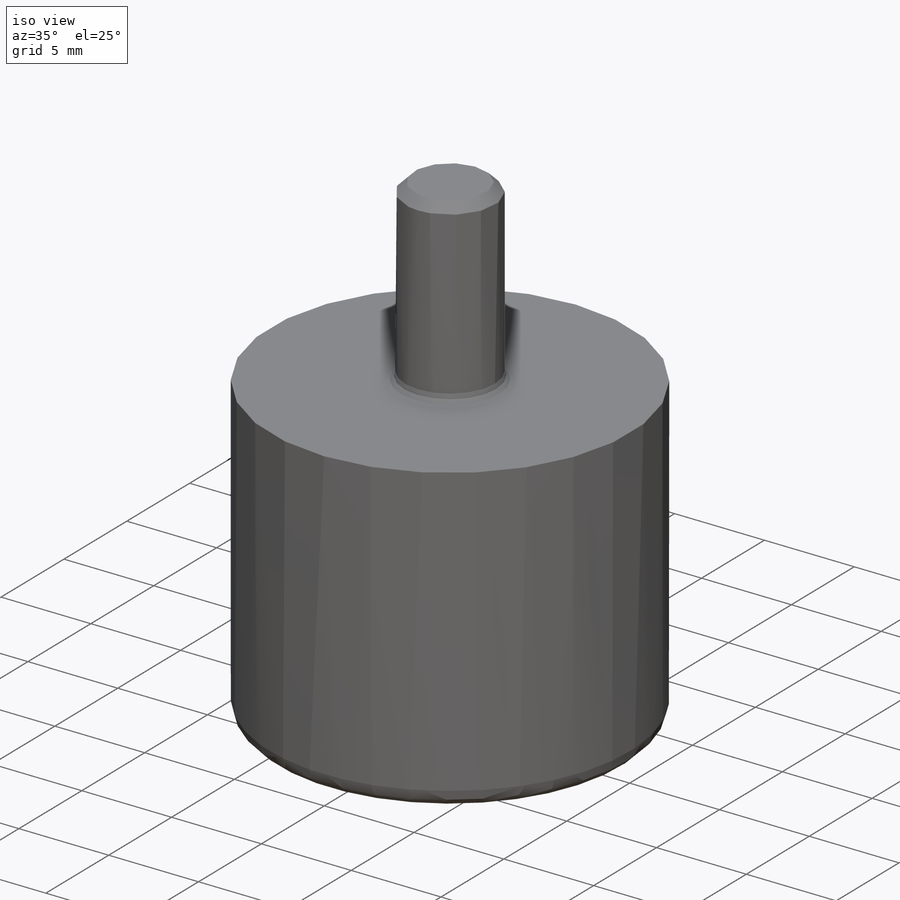
[diagram: iso view]
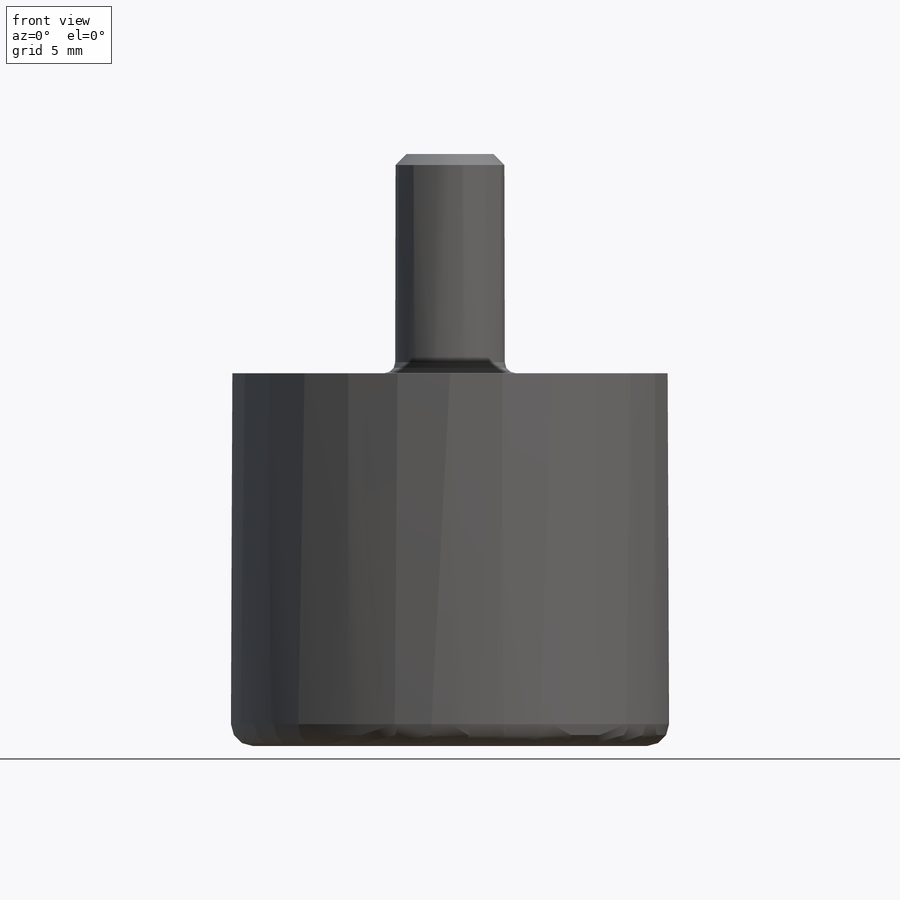
[diagram: front view]
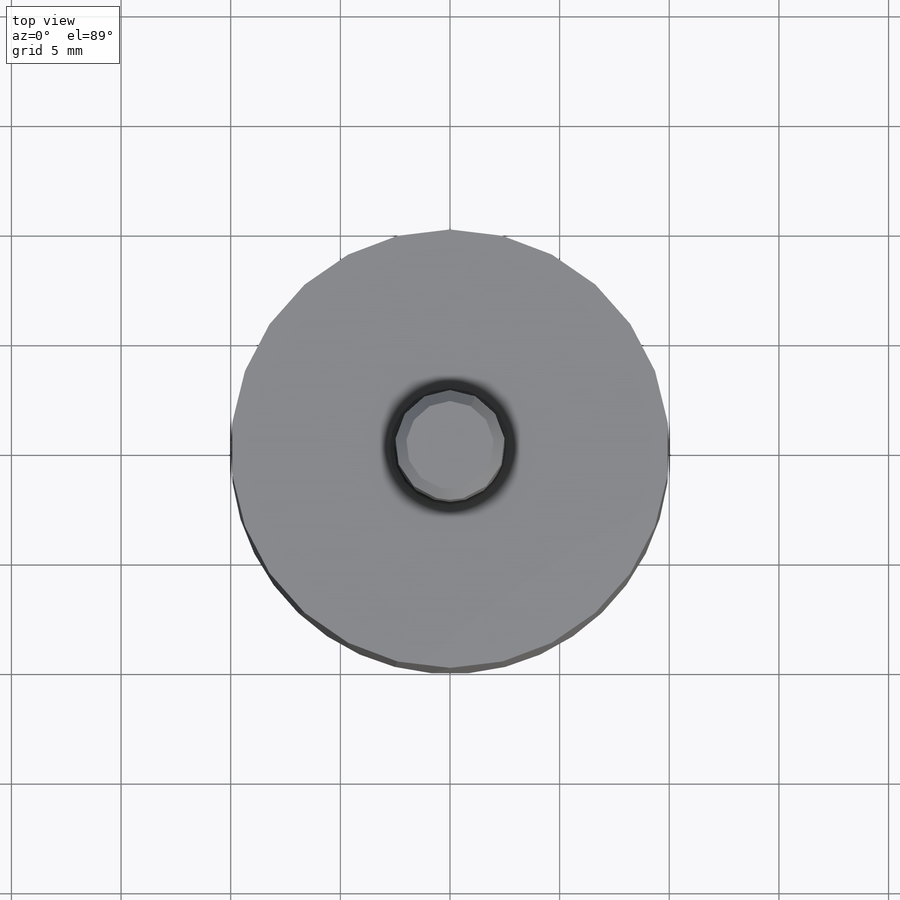
[diagram: top view]
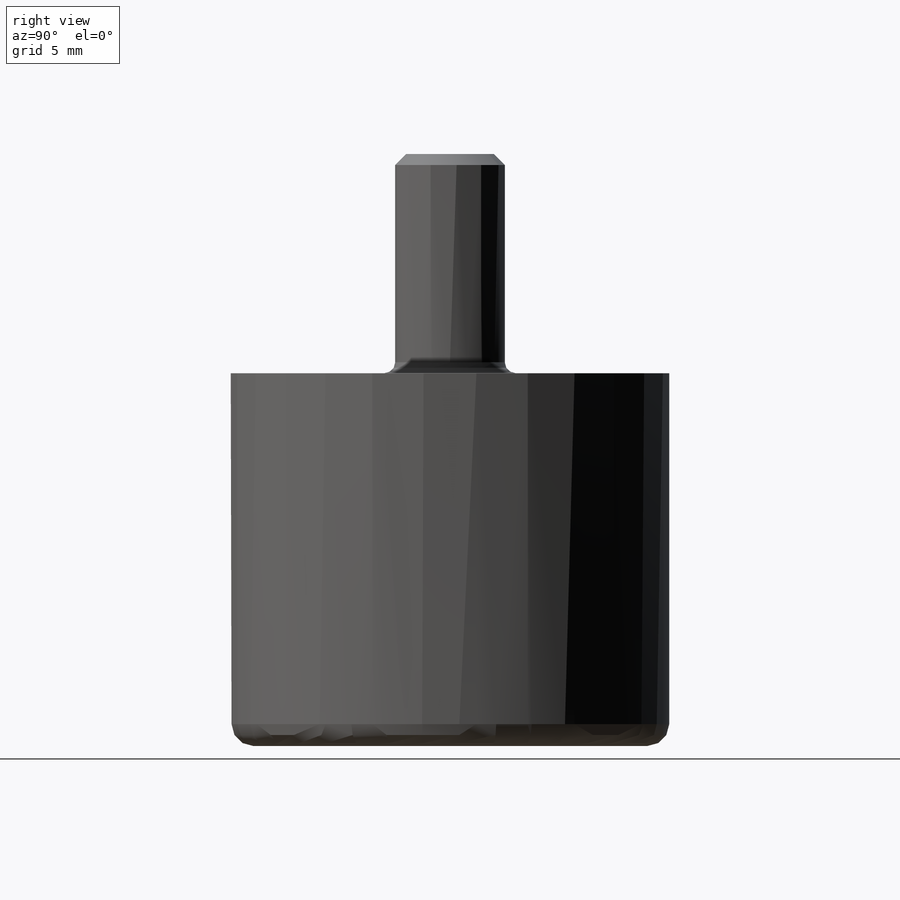
[diagram: right view]
SOLIDWORKS PART (.sldprt)
format: sldprt  version: not decoded by parser v0  size: 249,856 bytes
history: native  units: mm
features: plane x3, sketch x2, chamfer x2, material x1, revolve x1, extrude x1, fillet x1 (+11 scaffold rows collapsed)
feature tree (22):
  scaffold x11  (default folders/planes/origin — collapsed)
  material  "Matériau <non spécifié>"
  plane  "Face"
  plane  "Dessus"
  plane  "Droite"
  sketch  "Esquisse1"  dims[c1.D2=6.25mm c1.D1=10.0mm c2.D2=10.0mm c2.D3=6.25mm c2.D4=20.0mm c3.D3=6.25mm c3.D4=20.0mm c3.D5=3.0mm]
  revolve  "Révolution1"  Angle=360deg
  sketch  "Esquisse2"  dims[D1=5.0mm]
  extrude  "Extrusion1"  Depth=10mm
  fillet  "Congé1"  Radius=1mm
  chamfer  "Chanfrein1"  Distance=0.5mm Angle=45deg
  chamfer  "Congé2"  Distance=0.5mm
decode coverage: 7 of 7 modeling features carry decoded parameters
note: suppression state not decoded; provenance and decode notes live in map.json
